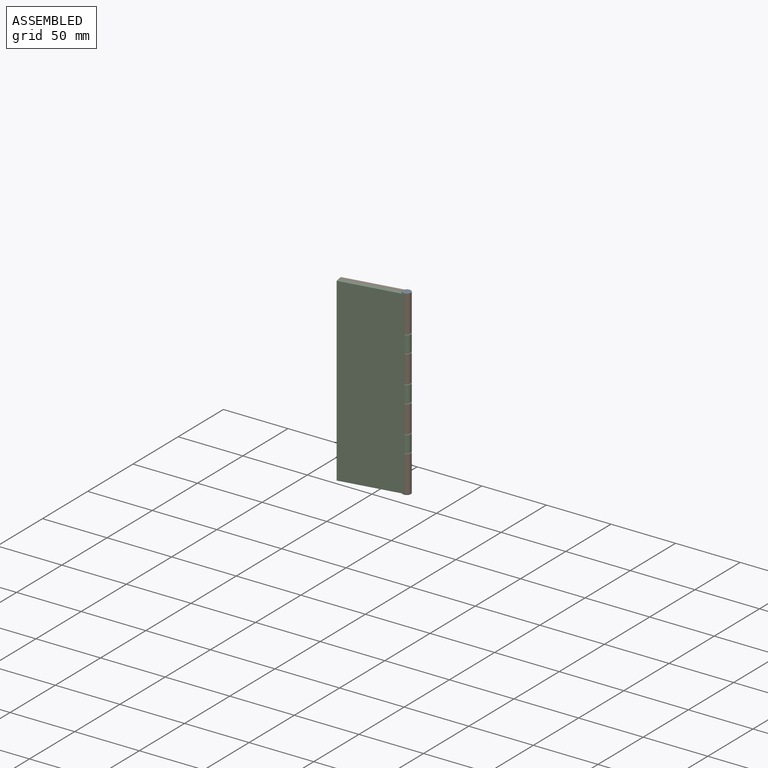
[diagram: assembled view]
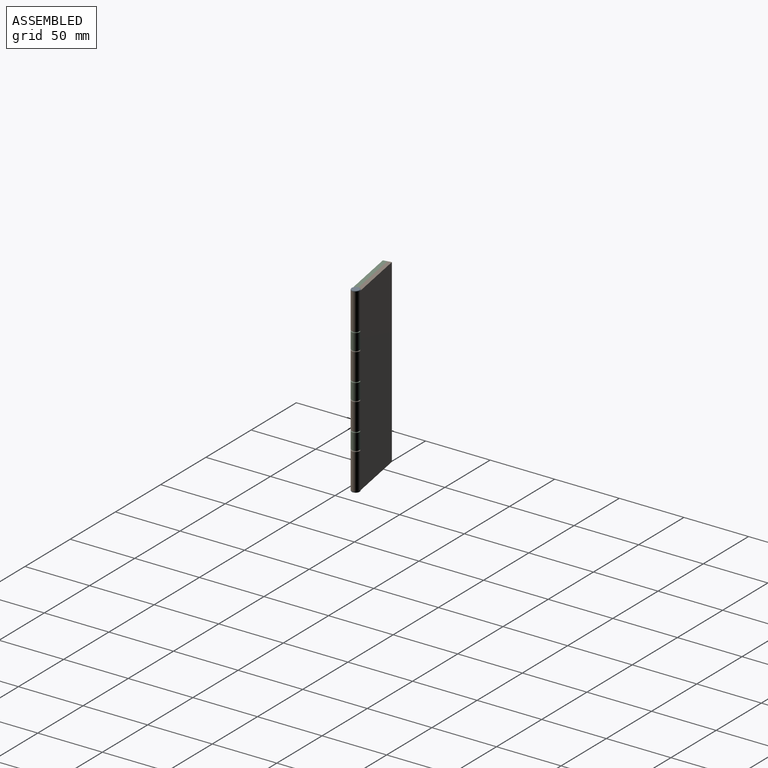
[diagram: assembled view, second angle]
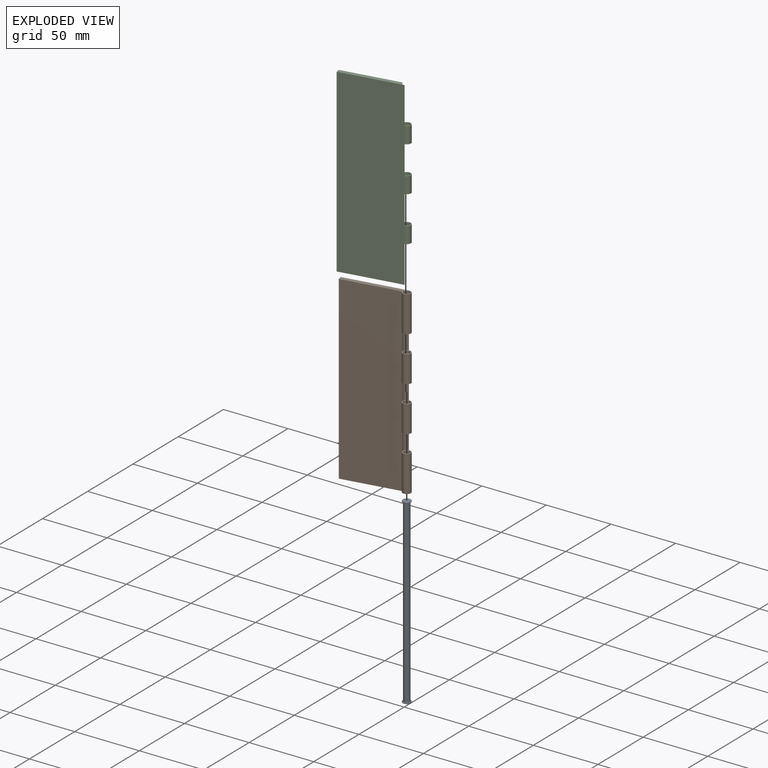
[diagram: exploded view]
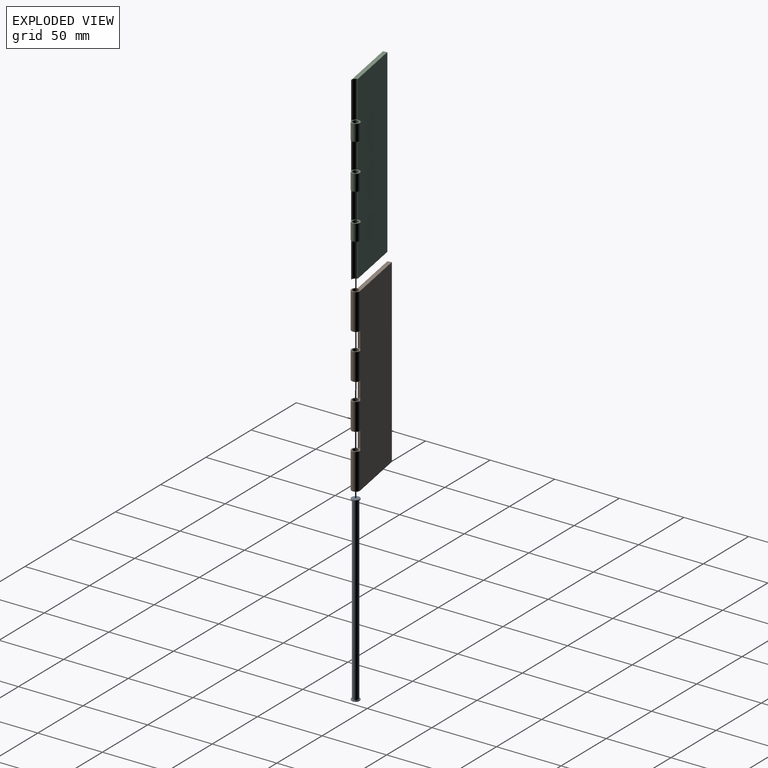
[diagram: exploded view, second angle]
ASSEMBLY  parts=3 mates=5
PART A: 9 faces, bbox 6.9x6.9x141.3 mm
  f0: cylinder r=2.38mm len=139.7mm, axis (0,0,-1), area 2090.2mm2, adj f3,f7
  f1: cylinder r=3.17mm len=6.35mm, axis (0,0,1), area 7.9mm2, adj f3,f4
  f2: plane 5.56x5.56mm, normal (0,0,-1), area 24.2mm2, adj f4
  f3: plane 6.35x6.35mm, normal (0,0,1), area 13.9mm2, adj f0,f1
  f4: torus R=2.78mm, axis (0,0,-1), area 11.9mm2, adj f1,f2
  f5: cylinder r=3.17mm len=6.35mm, axis (0,0,-1), area 7.9mm2, adj f7,f8
  f6: plane 5.56x5.56mm, normal (0,0,1), area 24.2mm2, adj f8
  f7: plane 6.35x6.35mm, normal (0,0,-1), area 13.9mm2, adj f0,f5
  f8: torus R=2.78mm, axis (0,0,1), area 11.9mm2, adj f5,f6
PART B: 22 faces, bbox 50.8x6.4x139.7 mm
  f0: cylinder r=3.17mm len=20.96mm, axis (0,0,-1), area 313.5mm2, adj f3,f5,f11,f16
  f1: cylinder r=3.17mm len=27.94mm, axis (0,0,-1), area 418mm2, adj f3,f5,f8,f13
  f2: cylinder r=3.17mm len=20.96mm, axis (0,0,-1), area 313.5mm2, adj f3,f5,f10,f14
  f3: plane 139.7x44.45mm, normal (0,-1,0), area 6209.7mm2, adj f0,f1,f2,f4,f6,f7,f8,f9
  f4: cylinder r=3.17mm len=27.94mm, axis (0,0,-1), area 418mm2, adj f3,f5,f7,f17
  f5: plane 139.7x47.63mm, normal (0,1,0), area 6653.2mm2, adj f0,f1,f2,f4,f6,f7,f8,f9
  f6: plane 139.7x3.18mm, normal (-1,0,0), area 443.5mm2, adj f3,f5,f7,f8
  f7: plane 50.8x6.35mm, normal (0,0,1), area 157.1mm2, adj f3,f4,f5,f6,f18
  f8: plane 50.8x6.35mm, normal (0,0,-1), area 157.1mm2, adj f1,f3,f5,f6,f21
  f9: cylinder r=3.17mm len=13.97mm, axis (0,0,1), area 69.7mm2, adj f3,f5,f10,f11
  f10: plane 6.35x6.35mm, normal (0,0,1), area 13.9mm2, adj f2,f9,f20
  f11: plane 6.35x6.35mm, normal (0,0,-1), area 13.9mm2, adj f0,f9,f19
  f12: cylinder r=3.17mm len=13.97mm, axis (0,0,1), area 69.7mm2, adj f3,f5,f13,f14
  f13: plane 6.35x6.35mm, normal (0,0,1), area 13.9mm2, adj f1,f12,f21
  f14: plane 6.35x6.35mm, normal (0,0,-1), area 13.9mm2, adj f2,f12,f20
  f15: cylinder r=3.17mm len=13.97mm, axis (0,0,1), area 69.7mm2, adj f3,f5,f16,f17
  f16: plane 6.35x6.35mm, normal (0,0,1), area 13.9mm2, adj f0,f15,f19
  f17: plane 6.35x6.35mm, normal (0,0,-1), area 13.9mm2, adj f4,f15,f18
  f18: cylinder r=2.38mm len=27.94mm, axis (0,0,1), area 418mm2, adj f7,f17
  f19: cylinder r=2.38mm len=20.96mm, axis (0,0,1), area 313.5mm2, adj f11,f16
  f20: cylinder r=2.38mm len=20.96mm, axis (0,0,1), area 313.5mm2, adj f10,f14
  f21: cylinder r=2.38mm len=27.94mm, axis (0,0,1), area 418mm2, adj f8,f13
PART C: 21 faces, bbox 50.8x6.4x139.7 mm
  f0: cylinder r=3.17mm len=22.23mm, axis (0,0,1), area 110.8mm2, adj f3,f5,f14,f16
  f1: cylinder r=3.17mm len=22.23mm, axis (0,0,1), area 110.8mm2, adj f3,f5,f11,f13
  f2: cylinder r=3.17mm len=28.58mm, axis (0,0,1), area 142.5mm2, adj f3,f5,f6,f10
  f3: plane 139.7x44.45mm, normal (0,-1,0), area 6209.7mm2, adj f0,f1,f2,f4,f6,f7,f8,f9
  f4: plane 139.7x3.18mm, normal (1,0,0), area 443.5mm2, adj f3,f5,f6,f7
  f5: plane 139.7x47.63mm, normal (0,1,0), area 6653.2mm2, adj f0,f1,f2,f4,f6,f7,f8,f9
  f6: plane 47.63x3.18mm, normal (0,0,1), area 143.3mm2, adj f2,f3,f4,f5
  f7: plane 47.63x3.18mm, normal (0,0,-1), area 143.3mm2, adj f3,f4,f5,f8
  f8: cylinder r=3.17mm len=28.58mm, axis (0,0,1), area 142.5mm2, adj f3,f5,f7,f17
  f9: cylinder r=3.17mm len=12.7mm, axis (0,0,-1), area 190mm2, adj f3,f5,f10,f11
  f10: plane 6.35x6.35mm, normal (0,0,1), area 13.9mm2, adj f2,f9,f20
  f11: plane 6.35x6.35mm, normal (0,0,-1), area 13.9mm2, adj f1,f9,f20
  f12: cylinder r=3.17mm len=12.7mm, axis (0,0,-1), area 190mm2, adj f3,f5,f13,f14
  f13: plane 6.35x6.35mm, normal (0,0,1), area 13.9mm2, adj f1,f12,f19
  f14: plane 6.35x6.35mm, normal (0,0,-1), area 13.9mm2, adj f0,f12,f19
  f15: cylinder r=3.17mm len=12.7mm, axis (0,0,-1), area 190mm2, adj f3,f5,f16,f17
  f16: plane 6.35x6.35mm, normal (0,0,1), area 13.9mm2, adj f0,f15,f18
  f17: plane 6.35x6.35mm, normal (0,0,-1), area 13.9mm2, adj f8,f15,f18
  f18: cylinder r=2.38mm len=12.7mm, axis (0,0,1), area 190mm2, adj f16,f17
  f19: cylinder r=2.38mm len=12.7mm, axis (0,0,1), area 190mm2, adj f13,f14
  f20: cylinder r=2.38mm len=12.7mm, axis (0,0,1), area 190mm2, adj f10,f11
PLACE A t=(55.58,44.95,48.67)mm
PLACE B rot(axis=(0,0,1),10deg) t=(8.69,36.66,48.67)mm
PLACE C rot(axis=(0,0,-1),170deg) t=(9.24,33.53,48.67)mm
MATE planar B.f0 <-> C.f0  axis (0,0,-1) through (55.58,44.95,160.43)mm
MATE planar B.f7 <-> A.f0  axis (0,0,1) through (32.83,42.41,188.37)mm
MATE cylindrical B.f0 <-> C.f0  axis (0,0,1) through (55.58,44.95,174.4)mm
MATE planar B.f3 <-> C.f3  axis (0.17,-0.98,0) through (30.57,40.53,118.52)mm
MATE cylindrical A.f0 <-> B.f0  axis (0,0,-1) through (55.58,44.95,118.52)mm
